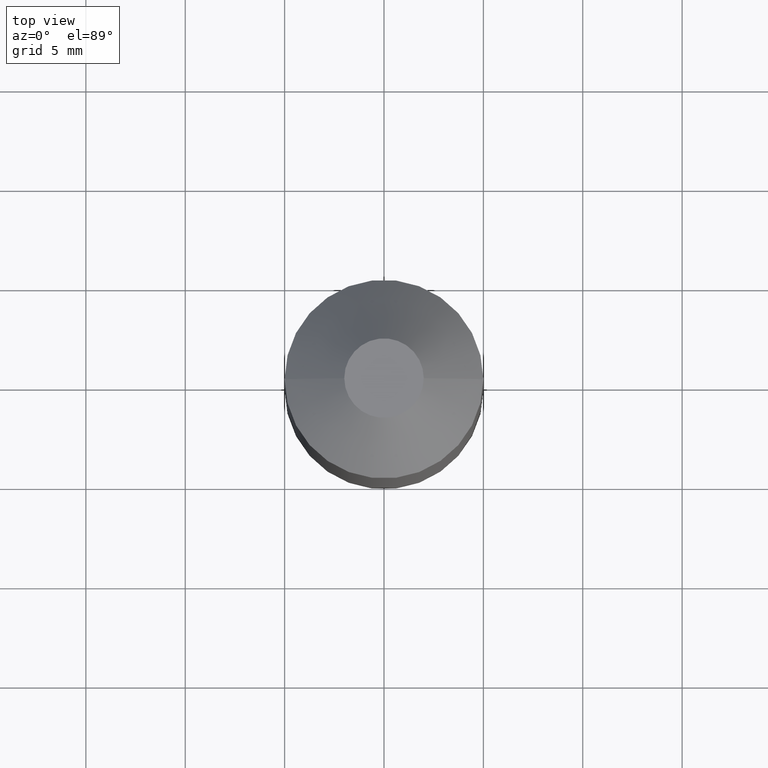
[diagram: clean part render]
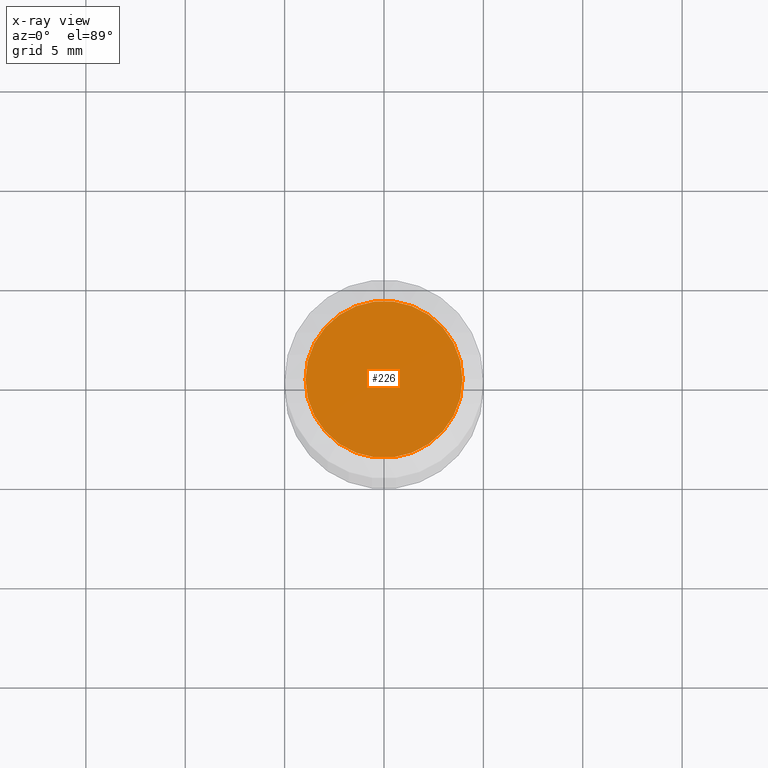
[diagram: x-ray — body ghosted, one internal face saturated and labeled with its STEP entity id]
A machine part, top view, then the same camera in x-ray: the body is ghosted and one INTERNAL B-rep face — a face not visible from any outside direction — is saturated and labeled: STEP entity #226.
In plain terms, the highlighted planar face has unit normal (0, 0, -1).
Its self-contained STEP definition (entity closure, byte-faithful):
#31 = VERTEX_POINT ( 'NONE', #140 ) ;
#34 = AXIS2_PLACEMENT_3D ( 'NONE', #56, #275, #158 ) ;
#46 = CIRCLE ( 'NONE', #131, 3.949999999999790600 ) ;
#56 = CARTESIAN_POINT ( 'NONE',  ( 9.947598300641398800E-014, 0.0000000000000000000, 0.0000000000000000000 ) ) ;
#65 = EDGE_LOOP ( 'NONE', ( #174, #121 ) ) ;
#74 = FACE_OUTER_BOUND ( 'NONE', #65, .T. ) ;
#86 = CARTESIAN_POINT ( 'NONE',  ( 3.949999999999890000, 0.0000000000000000000, 0.0000000000000000000 ) ) ;
#88 = DIRECTION ( 'NONE',  ( -0.0000000000000000000, 0.0000000000000000000, -1.000000000000000000 ) ) ;
#97 = CIRCLE ( 'NONE', #34, 3.949999999999790600 ) ;
#117 = AXIS2_PLACEMENT_3D ( 'NONE', #136, #88, #305 ) ;
#121 = ORIENTED_EDGE ( 'NONE', *, *, #192, .F. ) ;
#127 = DIRECTION ( 'NONE',  ( 1.000000000000000000, 0.0000000000000000000, 0.0000000000000000000 ) ) ;
#131 = AXIS2_PLACEMENT_3D ( 'NONE', #155, #291, #127 ) ;
#136 = CARTESIAN_POINT ( 'NONE',  ( 3.949999999999890000, 0.0000000000000000000, 0.0000000000000000000 ) ) ;
#140 = CARTESIAN_POINT ( 'NONE',  ( -3.949999999999690600, 4.837354856631787700E-016, 0.0000000000000000000 ) ) ;
#155 = CARTESIAN_POINT ( 'NONE',  ( 9.947598300641398800E-014, 0.0000000000000000000, 0.0000000000000000000 ) ) ;
#158 = DIRECTION ( 'NONE',  ( 1.000000000000000000, 0.0000000000000000000, 0.0000000000000000000 ) ) ;
#174 = ORIENTED_EDGE ( 'NONE', *, *, #265, .F. ) ;
#192 = EDGE_CURVE ( 'NONE', #31, #203, #97, .T. ) ;
#203 = VERTEX_POINT ( 'NONE', #86 ) ;
#226 = ADVANCED_FACE ( 'NONE', ( #74 ), #240, .T. ) ;
#240 = PLANE ( 'NONE',  #117 ) ;
#265 = EDGE_CURVE ( 'NONE', #203, #31, #46, .T. ) ;
#275 = DIRECTION ( 'NONE',  ( 0.0000000000000000000, 0.0000000000000000000, 1.000000000000000000 ) ) ;
#291 = DIRECTION ( 'NONE',  ( 0.0000000000000000000, 0.0000000000000000000, 1.000000000000000000 ) ) ;
#305 = DIRECTION ( 'NONE',  ( -1.000000000000000000, 0.0000000000000000000, 0.0000000000000000000 ) ) ;